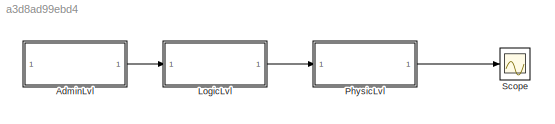
MODEL slx_a3d8ad99ebd4
KIND model
CONFIG AbsTol = auto
CONFIG EnableMultiTasking = off
CONFIG FixedStep = auto
CONFIG MaxStep = auto
CONFIG MinStep = auto
CONFIG RelTol = 1e-3
CONFIG SampleTimeConstraint = Unconstrained
CONFIG SolverName = VariableStepAuto
CONFIG StartTime = 0.0
CONFIG StopTime = 10.0
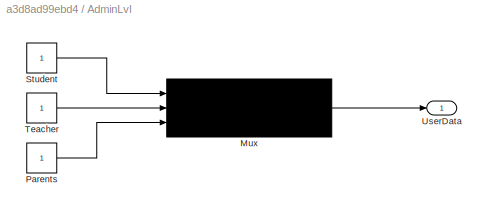
BLOCK [SubSystem] AdminLvl
BLOCK [Mux] AdminLvl/Mux
  DisplayOption = bar
  Inputs = 3
BLOCK [Constant] AdminLvl/Parents
BLOCK [Constant] AdminLvl/Student
BLOCK [Constant] AdminLvl/Teacher
BLOCK [Outport] AdminLvl/UserData
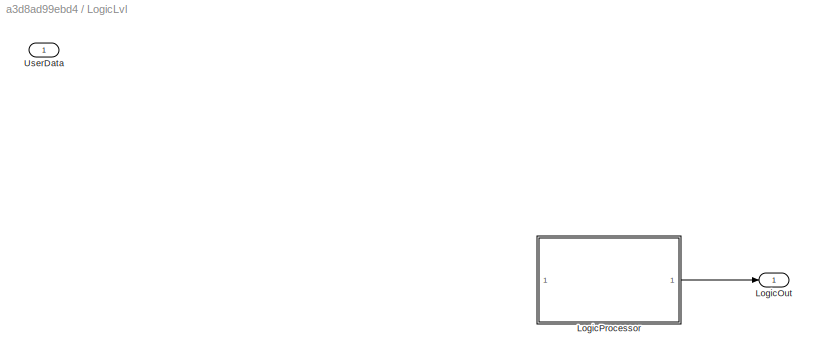
BLOCK [SubSystem] LogicLvl
BLOCK [Outport] LogicLvl/LogicOut
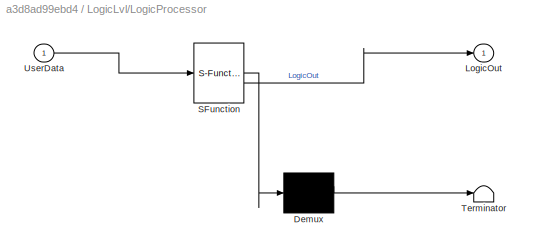
BLOCK [SubSystem] LogicLvl/LogicProcessor
  ErrorFcn = Stateflow.Translate.translate
  PermitHierarchicalResolution = ExplicitOnly
  SFBlockType = MATLAB Function
  TreatAsAtomicUnit = on
BLOCK [Demux] LogicLvl/LogicProcessor/ Demux 
  Outputs = 1
BLOCK [S-Function] LogicLvl/LogicProcessor/ SFunction 
  EnableBusSupport = off
  FunctionName = sf_sfun
  PortCounts = [1 2]
  SFcnIsStateOwnerBlock = off
  SFunctionDeploymentMode = off
  Tag = Stateflow S-Function 1
BLOCK [Terminator] LogicLvl/LogicProcessor/ Terminator 
BLOCK [Outport] LogicLvl/LogicProcessor/LogicOut
BLOCK [Inport] LogicLvl/LogicProcessor/UserData
BLOCK [Inport] LogicLvl/UserData
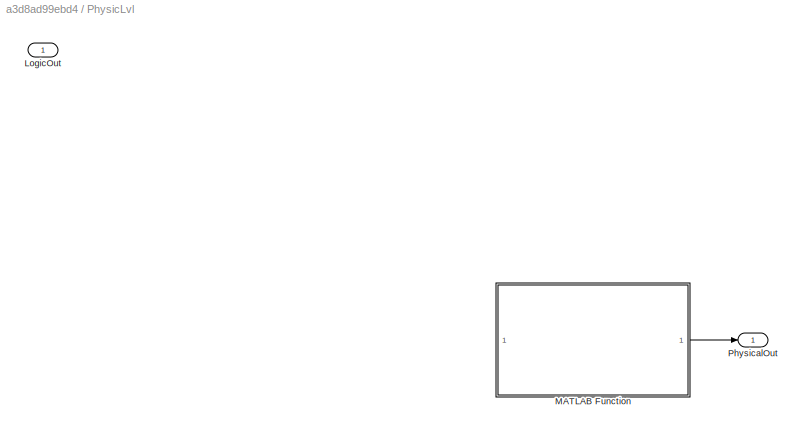
BLOCK [SubSystem] PhysicLvl
BLOCK [Inport] PhysicLvl/LogicOut
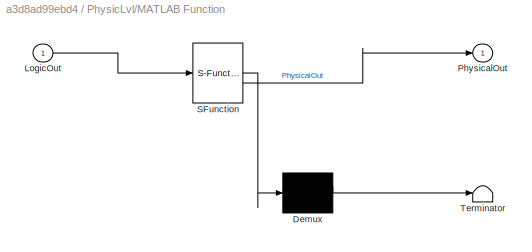
BLOCK [SubSystem] PhysicLvl/MATLAB Function
  ErrorFcn = Stateflow.Translate.translate
  PermitHierarchicalResolution = ExplicitOnly
  SFBlockType = MATLAB Function
  TreatAsAtomicUnit = on
BLOCK [Demux] PhysicLvl/MATLAB Function/ Demux 
  Outputs = 1
BLOCK [S-Function] PhysicLvl/MATLAB Function/ SFunction 
  EnableBusSupport = off
  FunctionName = sf_sfun
  PortCounts = [1 2]
  SFcnIsStateOwnerBlock = off
  SFunctionDeploymentMode = off
  Tag = Stateflow S-Function 3
BLOCK [Terminator] PhysicLvl/MATLAB Function/ Terminator 
BLOCK [Inport] PhysicLvl/MATLAB Function/LogicOut
BLOCK [Outport] PhysicLvl/MATLAB Function/PhysicalOut
BLOCK [Outport] PhysicLvl/PhysicalOut
BLOCK [Scope] Scope
  ActiveDisplayYMaximum = 1
  ActiveDisplayYMinimum = -1
  Floating = off
  GraphicalSettings = {"Style":{"BackgroundColor":[0.12941176470588237,0.12941176470588237,0.12941176470588237],"AxesColor":[0.07058823529411765,0.07058823529411765,0.07058823529411765],"LabelsColor":[0.8509803921568627,0.8509803921568627,0.8509803921568627],"PreserveColors":false,"Visible":[true],"LineStyle":["-"],"LineWidth":[1.5],"BarWidth":[0.9],"LineColor":["auto"],"LineFaceAlpha":[1],"LineEdgeAlpha":[1],"Marker":...<+1897ch>
  MultipleDisplayCache = [{"MaxYLimMag":1,"MaxYLimReal":1,"MinYLimMag":0,"MinYLimReal":-1,"PlotAsMagnitudePhase":false,"ShowGrid":true,"ShowLegend":false,"Title":"%<SignalLabel>","YLabel":""}]
  NumInputPorts = 1
  ScopeFrameLocation = window
  WasSavedAsWebScope = on
  WindowPosition = [1.000000,49.000000,1920.000000,1009.000000,]
LINE AdminLvl/Mux:1 -> AdminLvl/UserData:1
LINE AdminLvl/Parents:1 -> AdminLvl/Mux:3
LINE AdminLvl/Student:1 -> AdminLvl/Mux:1
LINE AdminLvl/Teacher:1 -> AdminLvl/Mux:2
LINE AdminLvl:1 -> LogicLvl:1
LINE LogicLvl/LogicProcessor:1 -> LogicLvl/LogicOut:1
LINE LogicLvl:1 -> PhysicLvl:1
LINE PhysicLvl/MATLAB Function:1 -> PhysicLvl/PhysicalOut:1
LINE PhysicLvl:1 -> Scope:1
CHART PhysicLvl/MATLAB Function states=1 transitions=1
  STATE_LABEL 'eML_blk_kernel()'
  STATE_LABEL "SCRIPT:\nfunction PhysicalOut = PhysicalLayer(LogicOut)\n% Фізичний рівень: передача даних між клієнтом, сервером і БД\n\n% Явно визначаємо тип і розмір виходу\nPhysicalOut = zeros(1,1); % одиничне число\n\nif LogicOut == 1\n    disp('Дані передані до сервера і збережені в базі даних.');\n    PhysicalOut = 1;\nelse\n    disp('Немає даних для збереження.');\n    PhysicalOut = 0;\nend\nend\n"
CHART LogicLvl/LogicProcessor states=1 transitions=1
  STATE_LABEL 'eML_blk_kernel()'
  STATE_LABEL "SCRIPT:\nfunction LogicOut = LogicProcessor(UserData)\n\nLogicOut = zeros(1,1); \n\nif any(UserData > 0)\n    disp('Обробка даних: оновлення оцінок, журналу, сповіщень...');\n    LogicOut = 1;\nelse\n    disp('Дані відсутні.');\n    LogicOut = 0;\nend\nend\n"
CHART  states=0 transitions=0
CHART  states=0 transitions=0
